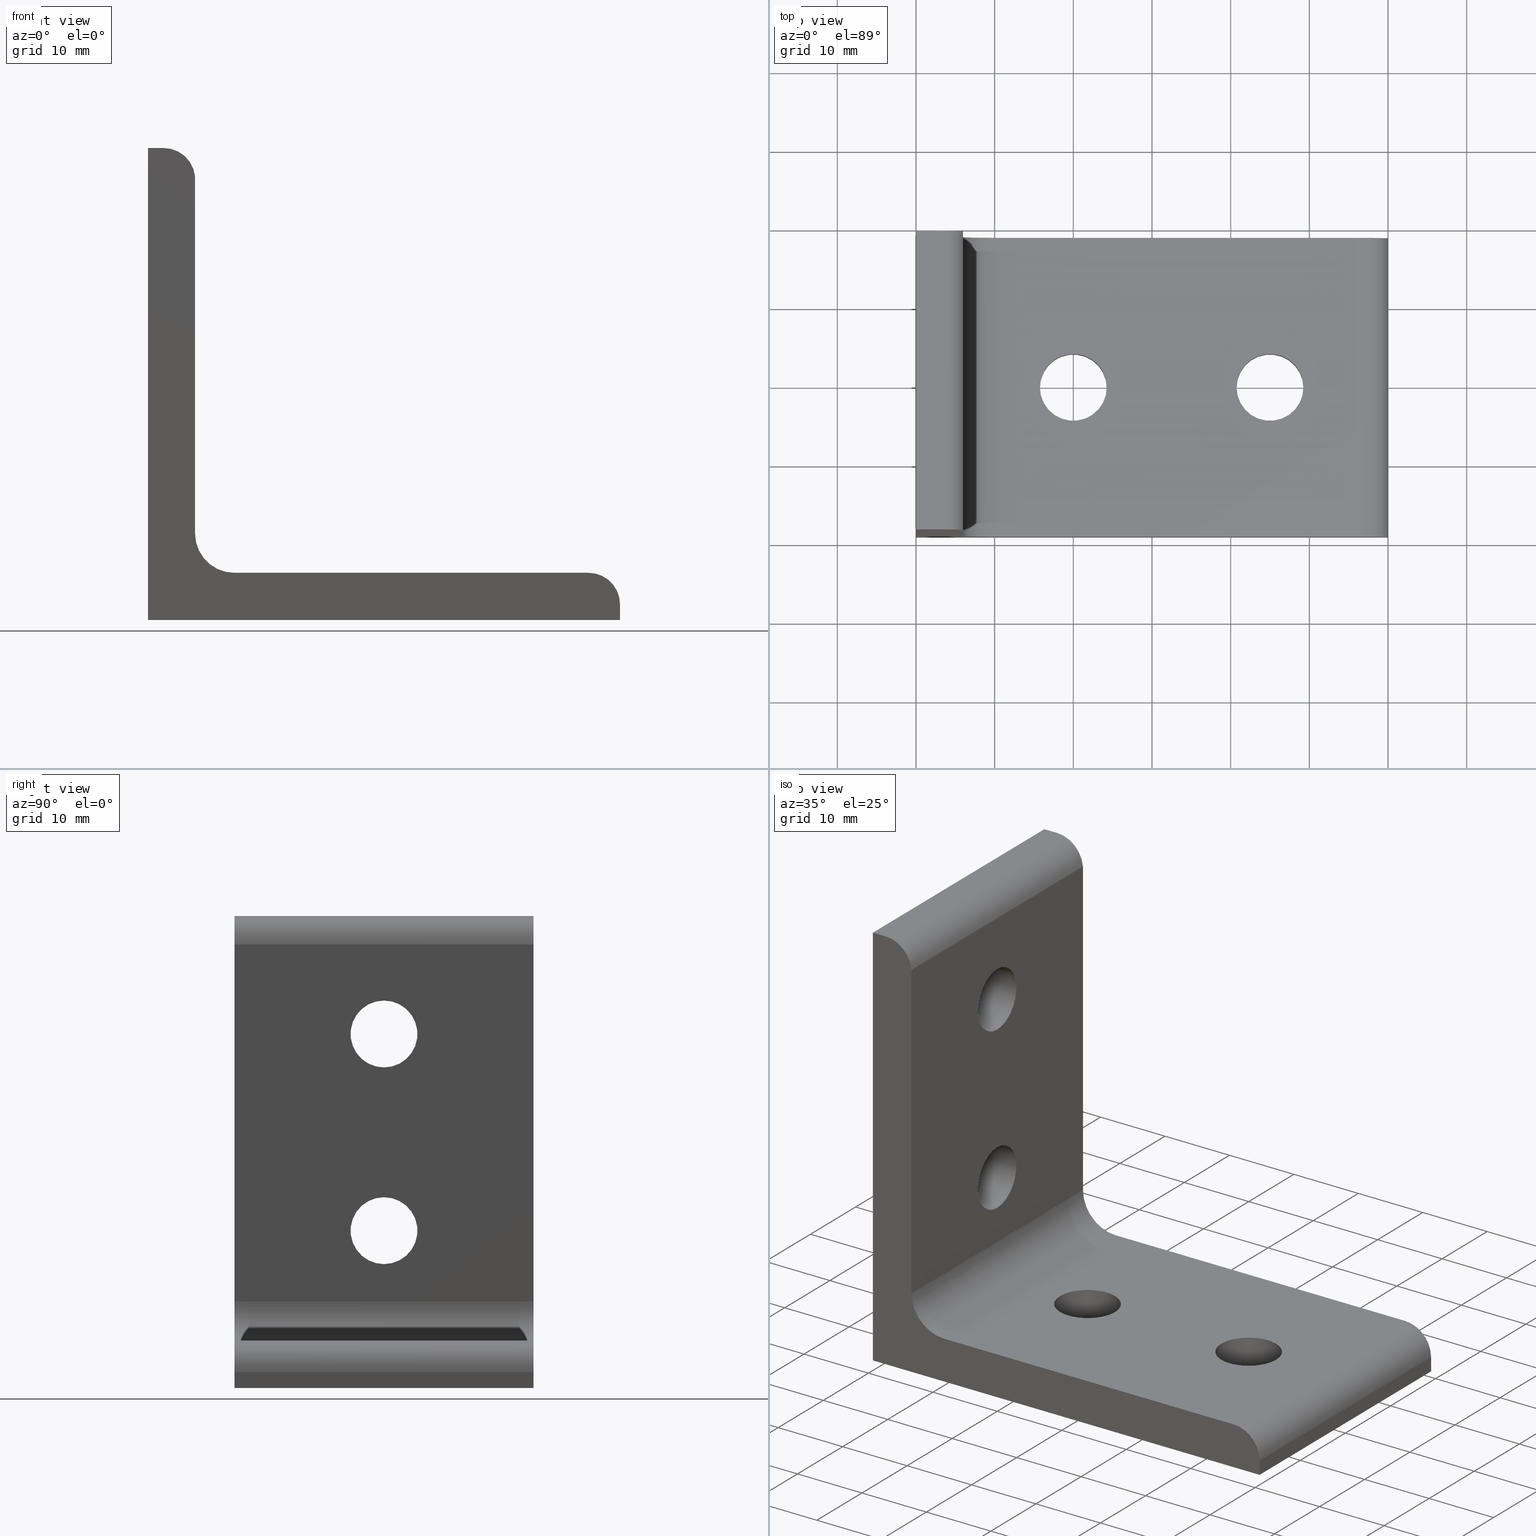
[diagram: canonical four-view strip — front | top / right | iso, engineering-drawing reading convention]
A machine part, canonical four-view strip (front | top / right | iso — engineering-drawing reading convention). The complete STEP part file that produces these views, byte-faithful:
ISO-10303-21;
HEADER;
/* Generated by software containing ST-Developer
 * from STEP Tools, Inc. (www.steptools.com) 
 */

FILE_DESCRIPTION(
/* description */ ('SQUADRETTA 60x60x40'),
/* implementation_level */ '2;1');

FILE_NAME(
/* name */ 
'Q:\\Catalogo\\2_Accessori Dierre\\Per Download Web e catalogo cartace
o\\CATALOGO ELEMENTI ASSEMBLAGGIO\\PAGINA 31\\DSQAL0000034.stp',
/* time_stamp */ '2018-11-02T11:30:44+01:00',
/* author */ ('fzagni'),
/* organization */ (''),
/* preprocessor_version */ 'ST-DEVELOPER v16.1',
/* originating_system */ 'Autodesk Inventor 2016',
/* authorisation */ '');

FILE_SCHEMA (('AUTOMOTIVE_DESIGN { 1 0 10303 214 3 1 1 }'));
ENDSEC;

DATA;
#10=MECHANICAL_DESIGN_GEOMETRIC_PRESENTATION_REPRESENTATION('',(#13),#478);
#11=SHAPE_REPRESENTATION_RELATIONSHIP('SRR','None',#487,#12);
#12=ADVANCED_BREP_SHAPE_REPRESENTATION('',(#14),#477);
#13=STYLED_ITEM('',(#496),#14);
#14=MANIFOLD_SOLID_BREP('None',#286);
#15=FACE_BOUND('',#66,.T.);
#16=FACE_BOUND('',#67,.T.);
#17=FACE_BOUND('',#70,.T.);
#18=FACE_BOUND('',#71,.T.);
#19=FACE_BOUND('',#75,.T.);
#20=FACE_BOUND('',#76,.T.);
#21=FACE_BOUND('',#78,.T.);
#22=FACE_BOUND('',#79,.T.);
#23=FACE_BOUND('',#83,.T.);
#24=FACE_BOUND('',#85,.T.);
#25=FACE_BOUND('',#87,.T.);
#26=FACE_BOUND('',#89,.T.);
#27=CIRCLE('',#290,3.99999753756174);
#28=CIRCLE('',#291,3.99999753756174);
#29=CIRCLE('',#293,4.24999905648292);
#30=CIRCLE('',#294,4.24999905648292);
#31=CIRCLE('',#296,5.00378472891907);
#32=CIRCLE('',#297,5.00378472891907);
#33=CIRCLE('',#299,4.24999905648292);
#34=CIRCLE('',#300,4.24999905648292);
#35=CIRCLE('',#302,4.00000026990974);
#36=CIRCLE('',#303,4.00000026990974);
#37=CIRCLE('',#306,4.24999905648292);
#38=CIRCLE('',#307,4.24999905648292);
#39=CIRCLE('',#309,4.24999905648292);
#40=CIRCLE('',#310,4.24999905648292);
#41=CYLINDRICAL_SURFACE('',#289,3.99999753756174);
#42=CYLINDRICAL_SURFACE('',#295,5.00378472891907);
#43=CYLINDRICAL_SURFACE('',#301,4.00000026990974);
#44=CYLINDRICAL_SURFACE('',#313,4.24999905648292);
#45=CYLINDRICAL_SURFACE('',#314,4.24999905648292);
#46=CYLINDRICAL_SURFACE('',#315,4.24999905648292);
#47=CYLINDRICAL_SURFACE('',#316,4.24999905648292);
#48=FACE_OUTER_BOUND('',#63,.T.);
#49=FACE_OUTER_BOUND('',#64,.T.);
#50=FACE_OUTER_BOUND('',#65,.T.);
#51=FACE_OUTER_BOUND('',#68,.T.);
#52=FACE_OUTER_BOUND('',#69,.T.);
#53=FACE_OUTER_BOUND('',#72,.T.);
#54=FACE_OUTER_BOUND('',#73,.T.);
#55=FACE_OUTER_BOUND('',#74,.T.);
#56=FACE_OUTER_BOUND('',#77,.T.);
#57=FACE_OUTER_BOUND('',#80,.T.);
#58=FACE_OUTER_BOUND('',#81,.T.);
#59=FACE_OUTER_BOUND('',#82,.T.);
#60=FACE_OUTER_BOUND('',#84,.T.);
#61=FACE_OUTER_BOUND('',#86,.T.);
#62=FACE_OUTER_BOUND('',#88,.T.);
#63=EDGE_LOOP('',(#193,#194,#195,#196));
#64=EDGE_LOOP('',(#197,#198,#199,#200));
#65=EDGE_LOOP('',(#201,#202,#203,#204));
#66=EDGE_LOOP('',(#205));
#67=EDGE_LOOP('',(#206));
#68=EDGE_LOOP('',(#207,#208,#209,#210));
#69=EDGE_LOOP('',(#211,#212,#213,#214));
#70=EDGE_LOOP('',(#215));
#71=EDGE_LOOP('',(#216));
#72=EDGE_LOOP('',(#217,#218,#219,#220));
#73=EDGE_LOOP('',(#221,#222,#223,#224));
#74=EDGE_LOOP('',(#225,#226,#227,#228));
#75=EDGE_LOOP('',(#229));
#76=EDGE_LOOP('',(#230));
#77=EDGE_LOOP('',(#231,#232,#233,#234));
#78=EDGE_LOOP('',(#235));
#79=EDGE_LOOP('',(#236));
#80=EDGE_LOOP('',(#237,#238,#239,#240,#241,#242,#243,#244,#245));
#81=EDGE_LOOP('',(#246,#247,#248,#249,#250,#251,#252,#253,#254));
#82=EDGE_LOOP('',(#255));
#83=EDGE_LOOP('',(#256));
#84=EDGE_LOOP('',(#257));
#85=EDGE_LOOP('',(#258));
#86=EDGE_LOOP('',(#259));
#87=EDGE_LOOP('',(#260));
#88=EDGE_LOOP('',(#261));
#89=EDGE_LOOP('',(#262));
#90=LINE('',#402,#111);
#91=LINE('',#404,#112);
#92=LINE('',#406,#113);
#93=LINE('',#407,#114);
#94=LINE('',#412,#115);
#95=LINE('',#416,#116);
#96=LINE('',#418,#117);
#97=LINE('',#419,#118);
#98=LINE('',#428,#119);
#99=LINE('',#432,#120);
#100=LINE('',#434,#121);
#101=LINE('',#435,#122);
#102=LINE('',#444,#123);
#103=LINE('',#448,#124);
#104=LINE('',#450,#125);
#105=LINE('',#451,#126);
#106=LINE('',#454,#127);
#107=LINE('',#456,#128);
#108=LINE('',#457,#129);
#109=LINE('',#463,#130);
#110=LINE('',#464,#131);
#111=VECTOR('',#321,1.99998341995524);
#112=VECTOR('',#322,38.);
#113=VECTOR('',#323,1.99998341995524);
#114=VECTOR('',#324,38.);
#115=VECTOR('',#329,38.);
#116=VECTOR('',#334,45.0133032110452);
#117=VECTOR('',#335,38.);
#118=VECTOR('',#336,45.0133032110452);
#119=VECTOR('',#345,38.);
#120=VECTOR('',#350,45.3656752245638);
#121=VECTOR('',#351,38.);
#122=VECTOR('',#352,45.3656752245638);
#123=VECTOR('',#361,38.);
#124=VECTOR('',#366,1.99999955599196);
#125=VECTOR('',#367,38.);
#126=VECTOR('',#368,1.99999955599196);
#127=VECTOR('',#371,59.9999866697599);
#128=VECTOR('',#372,38.);
#129=VECTOR('',#373,59.9999866697599);
#130=VECTOR('',#380,59.9999866797652);
#131=VECTOR('',#381,59.9999866797652);
#132=VERTEX_POINT('',#400);
#133=VERTEX_POINT('',#401);
#134=VERTEX_POINT('',#403);
#135=VERTEX_POINT('',#405);
#136=VERTEX_POINT('',#409);
#137=VERTEX_POINT('',#411);
#138=VERTEX_POINT('',#415);
#139=VERTEX_POINT('',#417);
#140=VERTEX_POINT('',#420);
#141=VERTEX_POINT('',#422);
#142=VERTEX_POINT('',#425);
#143=VERTEX_POINT('',#427);
#144=VERTEX_POINT('',#431);
#145=VERTEX_POINT('',#433);
#146=VERTEX_POINT('',#436);
#147=VERTEX_POINT('',#438);
#148=VERTEX_POINT('',#441);
#149=VERTEX_POINT('',#443);
#150=VERTEX_POINT('',#447);
#151=VERTEX_POINT('',#449);
#152=VERTEX_POINT('',#453);
#153=VERTEX_POINT('',#455);
#154=VERTEX_POINT('',#458);
#155=VERTEX_POINT('',#460);
#156=VERTEX_POINT('',#465);
#157=VERTEX_POINT('',#467);
#158=EDGE_CURVE('',#132,#133,#90,.T.);
#159=EDGE_CURVE('',#133,#134,#91,.T.);
#160=EDGE_CURVE('',#135,#134,#92,.T.);
#161=EDGE_CURVE('',#132,#135,#93,.T.);
#162=EDGE_CURVE('',#133,#136,#27,.T.);
#163=EDGE_CURVE('',#136,#137,#94,.T.);
#164=EDGE_CURVE('',#134,#137,#28,.T.);
#165=EDGE_CURVE('',#136,#138,#95,.T.);
#166=EDGE_CURVE('',#138,#139,#96,.T.);
#167=EDGE_CURVE('',#137,#139,#97,.T.);
#168=EDGE_CURVE('',#140,#140,#29,.T.);
#169=EDGE_CURVE('',#141,#141,#30,.T.);
#170=EDGE_CURVE('',#138,#142,#31,.T.);
#171=EDGE_CURVE('',#142,#143,#98,.T.);
#172=EDGE_CURVE('',#139,#143,#32,.T.);
#173=EDGE_CURVE('',#142,#144,#99,.T.);
#174=EDGE_CURVE('',#144,#145,#100,.T.);
#175=EDGE_CURVE('',#143,#145,#101,.T.);
#176=EDGE_CURVE('',#146,#146,#33,.T.);
#177=EDGE_CURVE('',#147,#147,#34,.T.);
#178=EDGE_CURVE('',#144,#148,#35,.T.);
#179=EDGE_CURVE('',#148,#149,#102,.T.);
#180=EDGE_CURVE('',#145,#149,#36,.T.);
#181=EDGE_CURVE('',#148,#150,#103,.T.);
#182=EDGE_CURVE('',#150,#151,#104,.T.);
#183=EDGE_CURVE('',#149,#151,#105,.T.);
#184=EDGE_CURVE('',#150,#152,#106,.T.);
#185=EDGE_CURVE('',#152,#153,#107,.T.);
#186=EDGE_CURVE('',#151,#153,#108,.T.);
#187=EDGE_CURVE('',#154,#154,#37,.T.);
#188=EDGE_CURVE('',#155,#155,#38,.T.);
#189=EDGE_CURVE('',#153,#135,#109,.T.);
#190=EDGE_CURVE('',#152,#132,#110,.T.);
#191=EDGE_CURVE('',#156,#156,#39,.T.);
#192=EDGE_CURVE('',#157,#157,#40,.T.);
#193=ORIENTED_EDGE('',*,*,#158,.T.);
#194=ORIENTED_EDGE('',*,*,#159,.T.);
#195=ORIENTED_EDGE('',*,*,#160,.F.);
#196=ORIENTED_EDGE('',*,*,#161,.F.);
#197=ORIENTED_EDGE('',*,*,#162,.T.);
#198=ORIENTED_EDGE('',*,*,#163,.T.);
#199=ORIENTED_EDGE('',*,*,#164,.F.);
#200=ORIENTED_EDGE('',*,*,#159,.F.);
#201=ORIENTED_EDGE('',*,*,#165,.T.);
#202=ORIENTED_EDGE('',*,*,#166,.T.);
#203=ORIENTED_EDGE('',*,*,#167,.F.);
#204=ORIENTED_EDGE('',*,*,#163,.F.);
#205=ORIENTED_EDGE('',*,*,#168,.F.);
#206=ORIENTED_EDGE('',*,*,#169,.F.);
#207=ORIENTED_EDGE('',*,*,#170,.T.);
#208=ORIENTED_EDGE('',*,*,#171,.T.);
#209=ORIENTED_EDGE('',*,*,#172,.F.);
#210=ORIENTED_EDGE('',*,*,#166,.F.);
#211=ORIENTED_EDGE('',*,*,#173,.T.);
#212=ORIENTED_EDGE('',*,*,#174,.T.);
#213=ORIENTED_EDGE('',*,*,#175,.F.);
#214=ORIENTED_EDGE('',*,*,#171,.F.);
#215=ORIENTED_EDGE('',*,*,#176,.T.);
#216=ORIENTED_EDGE('',*,*,#177,.T.);
#217=ORIENTED_EDGE('',*,*,#178,.T.);
#218=ORIENTED_EDGE('',*,*,#179,.T.);
#219=ORIENTED_EDGE('',*,*,#180,.F.);
#220=ORIENTED_EDGE('',*,*,#174,.F.);
#221=ORIENTED_EDGE('',*,*,#181,.T.);
#222=ORIENTED_EDGE('',*,*,#182,.T.);
#223=ORIENTED_EDGE('',*,*,#183,.F.);
#224=ORIENTED_EDGE('',*,*,#179,.F.);
#225=ORIENTED_EDGE('',*,*,#184,.T.);
#226=ORIENTED_EDGE('',*,*,#185,.T.);
#227=ORIENTED_EDGE('',*,*,#186,.F.);
#228=ORIENTED_EDGE('',*,*,#182,.F.);
#229=ORIENTED_EDGE('',*,*,#187,.F.);
#230=ORIENTED_EDGE('',*,*,#188,.F.);
#231=ORIENTED_EDGE('',*,*,#161,.T.);
#232=ORIENTED_EDGE('',*,*,#189,.F.);
#233=ORIENTED_EDGE('',*,*,#185,.F.);
#234=ORIENTED_EDGE('',*,*,#190,.T.);
#235=ORIENTED_EDGE('',*,*,#191,.T.);
#236=ORIENTED_EDGE('',*,*,#192,.T.);
#237=ORIENTED_EDGE('',*,*,#190,.F.);
#238=ORIENTED_EDGE('',*,*,#184,.F.);
#239=ORIENTED_EDGE('',*,*,#181,.F.);
#240=ORIENTED_EDGE('',*,*,#178,.F.);
#241=ORIENTED_EDGE('',*,*,#173,.F.);
#242=ORIENTED_EDGE('',*,*,#170,.F.);
#243=ORIENTED_EDGE('',*,*,#165,.F.);
#244=ORIENTED_EDGE('',*,*,#162,.F.);
#245=ORIENTED_EDGE('',*,*,#158,.F.);
#246=ORIENTED_EDGE('',*,*,#160,.T.);
#247=ORIENTED_EDGE('',*,*,#164,.T.);
#248=ORIENTED_EDGE('',*,*,#167,.T.);
#249=ORIENTED_EDGE('',*,*,#172,.T.);
#250=ORIENTED_EDGE('',*,*,#175,.T.);
#251=ORIENTED_EDGE('',*,*,#180,.T.);
#252=ORIENTED_EDGE('',*,*,#183,.T.);
#253=ORIENTED_EDGE('',*,*,#186,.T.);
#254=ORIENTED_EDGE('',*,*,#189,.T.);
#255=ORIENTED_EDGE('',*,*,#191,.F.);
#256=ORIENTED_EDGE('',*,*,#168,.T.);
#257=ORIENTED_EDGE('',*,*,#192,.F.);
#258=ORIENTED_EDGE('',*,*,#169,.T.);
#259=ORIENTED_EDGE('',*,*,#176,.F.);
#260=ORIENTED_EDGE('',*,*,#187,.T.);
#261=ORIENTED_EDGE('',*,*,#177,.F.);
#262=ORIENTED_EDGE('',*,*,#188,.T.);
#263=PLANE('',#288);
#264=PLANE('',#292);
#265=PLANE('',#298);
#266=PLANE('',#304);
#267=PLANE('',#305);
#268=PLANE('',#308);
#269=PLANE('',#311);
#270=PLANE('',#312);
#271=ADVANCED_FACE('',(#48),#263,.T.);
#272=ADVANCED_FACE('',(#49),#41,.T.);
#273=ADVANCED_FACE('',(#50,#15,#16),#264,.T.);
#274=ADVANCED_FACE('',(#51),#42,.F.);
#275=ADVANCED_FACE('',(#52,#17,#18),#265,.T.);
#276=ADVANCED_FACE('',(#53),#43,.T.);
#277=ADVANCED_FACE('',(#54),#266,.T.);
#278=ADVANCED_FACE('',(#55,#19,#20),#267,.T.);
#279=ADVANCED_FACE('',(#56,#21,#22),#268,.T.);
#280=ADVANCED_FACE('',(#57),#269,.F.);
#281=ADVANCED_FACE('',(#58),#270,.T.);
#282=ADVANCED_FACE('',(#59,#23),#44,.F.);
#283=ADVANCED_FACE('',(#60,#24),#45,.F.);
#284=ADVANCED_FACE('',(#61,#25),#46,.F.);
#285=ADVANCED_FACE('',(#62,#26),#47,.F.);
#286=CLOSED_SHELL('',(#271,#272,#273,#274,#275,#276,#277,#278,#279,#280,
#281,#282,#283,#284,#285));
#287=AXIS2_PLACEMENT_3D('placement',#398,#317,#318);
#288=AXIS2_PLACEMENT_3D('',#399,#319,#320);
#289=AXIS2_PLACEMENT_3D('',#408,#325,#326);
#290=AXIS2_PLACEMENT_3D('',#410,#327,#328);
#291=AXIS2_PLACEMENT_3D('',#413,#330,#331);
#292=AXIS2_PLACEMENT_3D('',#414,#332,#333);
#293=AXIS2_PLACEMENT_3D('',#421,#337,#338);
#294=AXIS2_PLACEMENT_3D('',#423,#339,#340);
#295=AXIS2_PLACEMENT_3D('',#424,#341,#342);
#296=AXIS2_PLACEMENT_3D('',#426,#343,#344);
#297=AXIS2_PLACEMENT_3D('',#429,#346,#347);
#298=AXIS2_PLACEMENT_3D('',#430,#348,#349);
#299=AXIS2_PLACEMENT_3D('',#437,#353,#354);
#300=AXIS2_PLACEMENT_3D('',#439,#355,#356);
#301=AXIS2_PLACEMENT_3D('',#440,#357,#358);
#302=AXIS2_PLACEMENT_3D('',#442,#359,#360);
#303=AXIS2_PLACEMENT_3D('',#445,#362,#363);
#304=AXIS2_PLACEMENT_3D('',#446,#364,#365);
#305=AXIS2_PLACEMENT_3D('',#452,#369,#370);
#306=AXIS2_PLACEMENT_3D('',#459,#374,#375);
#307=AXIS2_PLACEMENT_3D('',#461,#376,#377);
#308=AXIS2_PLACEMENT_3D('',#462,#378,#379);
#309=AXIS2_PLACEMENT_3D('',#466,#382,#383);
#310=AXIS2_PLACEMENT_3D('',#468,#384,#385);
#311=AXIS2_PLACEMENT_3D('',#469,#386,#387);
#312=AXIS2_PLACEMENT_3D('',#470,#388,#389);
#313=AXIS2_PLACEMENT_3D('',#471,#390,#391);
#314=AXIS2_PLACEMENT_3D('',#472,#392,#393);
#315=AXIS2_PLACEMENT_3D('',#473,#394,#395);
#316=AXIS2_PLACEMENT_3D('',#474,#396,#397);
#317=DIRECTION('axis',(0.,0.,1.));
#318=DIRECTION('refdir',(1.,0.,0.));
#319=DIRECTION('center_axis',(1.,0.,0.));
#320=DIRECTION('ref_axis',(0.,0.,-1.));
#321=DIRECTION('',(0.,0.,1.));
#322=DIRECTION('',(0.,-1.,0.));
#323=DIRECTION('',(0.,0.,1.));
#324=DIRECTION('',(0.,-1.,0.));
#325=DIRECTION('center_axis',(0.,-1.,0.));
#326=DIRECTION('ref_axis',(1.,0.,-7.16221E-12));
#327=DIRECTION('center_axis',(0.,-1.,0.));
#328=DIRECTION('ref_axis',(0.,0.,1.));
#329=DIRECTION('',(0.,-1.,0.));
#330=DIRECTION('center_axis',(0.,-1.,0.));
#331=DIRECTION('ref_axis',(0.,0.,1.));
#332=DIRECTION('center_axis',(0.,0.,1.));
#333=DIRECTION('ref_axis',(1.,0.,0.));
#334=DIRECTION('',(-1.,0.,0.));
#335=DIRECTION('',(0.,-1.,0.));
#336=DIRECTION('',(-1.,0.,0.));
#337=DIRECTION('center_axis',(0.,0.,1.));
#338=DIRECTION('ref_axis',(-1.,0.,0.));
#339=DIRECTION('center_axis',(0.,0.,1.));
#340=DIRECTION('ref_axis',(-1.,0.,0.));
#341=DIRECTION('center_axis',(0.,1.,0.));
#342=DIRECTION('ref_axis',(0.,0.,-1.));
#343=DIRECTION('center_axis',(0.,1.,0.));
#344=DIRECTION('ref_axis',(-1.,0.,0.));
#345=DIRECTION('',(0.,-1.,0.));
#346=DIRECTION('center_axis',(0.,1.,0.));
#347=DIRECTION('ref_axis',(-1.,0.,0.));
#348=DIRECTION('center_axis',(1.,0.,0.));
#349=DIRECTION('ref_axis',(0.,0.,-1.));
#350=DIRECTION('',(0.,0.,1.));
#351=DIRECTION('',(0.,-1.,0.));
#352=DIRECTION('',(0.,0.,1.));
#353=DIRECTION('center_axis',(-1.,0.,0.));
#354=DIRECTION('ref_axis',(0.,0.,-1.));
#355=DIRECTION('center_axis',(-1.,0.,0.));
#356=DIRECTION('ref_axis',(0.,0.,-1.));
#357=DIRECTION('center_axis',(0.,-1.,0.));
#358=DIRECTION('ref_axis',(1.,0.,0.));
#359=DIRECTION('center_axis',(0.,-1.,0.));
#360=DIRECTION('ref_axis',(1.,0.,0.));
#361=DIRECTION('',(0.,-1.,0.));
#362=DIRECTION('center_axis',(0.,-1.,0.));
#363=DIRECTION('ref_axis',(1.,0.,0.));
#364=DIRECTION('center_axis',(0.,0.,1.));
#365=DIRECTION('ref_axis',(1.,0.,0.));
#366=DIRECTION('',(-1.,0.,0.));
#367=DIRECTION('',(0.,-1.,0.));
#368=DIRECTION('',(-1.,0.,0.));
#369=DIRECTION('center_axis',(-1.,0.,0.));
#370=DIRECTION('ref_axis',(0.,0.,1.));
#371=DIRECTION('',(0.,0.,-1.));
#372=DIRECTION('',(0.,-1.,0.));
#373=DIRECTION('',(0.,0.,-1.));
#374=DIRECTION('center_axis',(-1.,0.,0.));
#375=DIRECTION('ref_axis',(0.,0.,-1.));
#376=DIRECTION('center_axis',(-1.,0.,0.));
#377=DIRECTION('ref_axis',(0.,0.,-1.));
#378=DIRECTION('center_axis',(0.,0.,-1.));
#379=DIRECTION('ref_axis',(-1.,0.,0.));
#380=DIRECTION('',(1.,0.,0.));
#381=DIRECTION('',(1.,0.,0.));
#382=DIRECTION('center_axis',(0.,0.,1.));
#383=DIRECTION('ref_axis',(-1.,0.,0.));
#384=DIRECTION('center_axis',(0.,0.,1.));
#385=DIRECTION('ref_axis',(-1.,0.,0.));
#386=DIRECTION('center_axis',(0.,-1.,0.));
#387=DIRECTION('ref_axis',(0.,0.,-1.));
#388=DIRECTION('center_axis',(0.,-1.,0.));
#389=DIRECTION('ref_axis',(0.,0.,-1.));
#390=DIRECTION('center_axis',(0.,0.,1.));
#391=DIRECTION('ref_axis',(-1.,0.,0.));
#392=DIRECTION('center_axis',(0.,0.,1.));
#393=DIRECTION('ref_axis',(-1.,0.,0.));
#394=DIRECTION('center_axis',(-1.,0.,0.));
#395=DIRECTION('ref_axis',(0.,0.,-1.));
#396=DIRECTION('center_axis',(-1.,0.,0.));
#397=DIRECTION('ref_axis',(0.,0.,-1.));
#398=CARTESIAN_POINT('',(0.,0.,0.));
#399=CARTESIAN_POINT('Origin',(59.9999866797652,19.,-1.163414E-15));
#400=CARTESIAN_POINT('',(59.9999866797652,19.,-1.163414E-15));
#401=CARTESIAN_POINT('',(59.9999866797361,19.,1.99998341995524));
#402=CARTESIAN_POINT('',(59.9999866797652,19.,-1.163414E-15));
#403=CARTESIAN_POINT('',(59.9999866797361,-19.,1.99998341995524));
#404=CARTESIAN_POINT('',(59.9999866797361,19.,1.99998341995524));
#405=CARTESIAN_POINT('',(59.9999866797652,-19.,-1.163414E-15));
#406=CARTESIAN_POINT('',(59.9999866797652,-19.,-1.163414E-15));
#407=CARTESIAN_POINT('',(59.9999866797652,19.,-1.163414E-15));
#408=CARTESIAN_POINT('Origin',(55.9999891421744,19.,1.99998341998389));
#409=CARTESIAN_POINT('',(55.9999891421744,19.,5.99998095754563));
#410=CARTESIAN_POINT('Origin',(55.9999891421744,19.,1.99998341998389));
#411=CARTESIAN_POINT('',(55.9999891421744,-19.,5.99998095754563));
#412=CARTESIAN_POINT('',(55.9999891421744,19.,5.99998095754563));
#413=CARTESIAN_POINT('Origin',(55.9999891421744,-19.,1.99998341998389));
#414=CARTESIAN_POINT('Origin',(55.9999891421744,19.,5.99998095754563));
#415=CARTESIAN_POINT('',(10.9866859311292,19.,5.99998095754563));
#416=CARTESIAN_POINT('',(55.9999891421744,19.,5.99998095754563));
#417=CARTESIAN_POINT('',(10.9866859311292,-19.,5.99998095754563));
#418=CARTESIAN_POINT('',(10.9866859311292,19.,5.99998095754563));
#419=CARTESIAN_POINT('',(55.9999891421744,-19.,5.99998095754563));
#420=CARTESIAN_POINT('',(24.2499946164085,-4.218075901E-6,5.99998095754595));
#421=CARTESIAN_POINT('Origin',(19.9999955599255,-4.218075901E-6,5.999980957546));
#422=CARTESIAN_POINT('',(49.2499890663084,-4.218075901E-6,5.9999809575457));
#423=CARTESIAN_POINT('Origin',(44.9999900098255,-4.218075901E-6,5.99998095754574));
#424=CARTESIAN_POINT('Origin',(10.9866859311292,19.,11.0037656864647));
#425=CARTESIAN_POINT('',(5.98290120221009,19.,11.0037656864647));
#426=CARTESIAN_POINT('Origin',(10.9866859311292,19.,11.0037656864647));
#427=CARTESIAN_POINT('',(5.98290120221009,-19.,11.0037656864647));
#428=CARTESIAN_POINT('',(5.98290120221009,19.,11.0037656864647));
#429=CARTESIAN_POINT('Origin',(10.9866859311292,-19.,11.0037656864647));
#430=CARTESIAN_POINT('Origin',(5.98290120221009,19.,11.0037656864647));
#431=CARTESIAN_POINT('',(5.98290120221009,19.,56.3694409110285));
#432=CARTESIAN_POINT('',(5.98290120221009,19.,11.0037656864647));
#433=CARTESIAN_POINT('',(5.98290120221009,-19.,56.3694409110285));
#434=CARTESIAN_POINT('',(5.98290120221009,19.,56.3694409110285));
#435=CARTESIAN_POINT('',(5.98290120221009,-19.,11.0037656864647));
#436=CARTESIAN_POINT('',(5.98290120221009,-4.218076355E-6,49.249989061303));
#437=CARTESIAN_POINT('Origin',(5.98290120221009,-4.218076356E-6,44.9999900048201));
#438=CARTESIAN_POINT('',(5.98290120221009,-4.218076355E-6,24.2499946164029));
#439=CARTESIAN_POINT('Origin',(5.98290120221009,-4.218076356E-6,19.99999555992));
#440=CARTESIAN_POINT('Origin',(1.99999955599196,19.,55.99998639985));
#441=CARTESIAN_POINT('',(1.99999955599196,19.,59.9999866697599));
#442=CARTESIAN_POINT('Origin',(1.99999955599196,19.,55.99998639985));
#443=CARTESIAN_POINT('',(1.99999955599196,-19.,59.9999866697599));
#444=CARTESIAN_POINT('',(1.99999955599196,19.,59.9999866697599));
#445=CARTESIAN_POINT('Origin',(1.99999955599196,-19.,55.99998639985));
#446=CARTESIAN_POINT('Origin',(1.99999955599196,19.,59.9999866697599));
#447=CARTESIAN_POINT('',(0.,19.,59.9999866697599));
#448=CARTESIAN_POINT('',(1.99999955599196,19.,59.9999866697599));
#449=CARTESIAN_POINT('',(0.,-19.,59.9999866697599));
#450=CARTESIAN_POINT('',(0.,19.,59.9999866697599));
#451=CARTESIAN_POINT('',(1.99999955599196,-19.,59.9999866697599));
#452=CARTESIAN_POINT('Origin',(0.,19.,59.9999866697599));
#453=CARTESIAN_POINT('',(0.,19.,-1.163414E-15));
#454=CARTESIAN_POINT('',(0.,19.,59.9999866697599));
#455=CARTESIAN_POINT('',(0.,-19.,-1.163414E-15));
#456=CARTESIAN_POINT('',(0.,19.,-1.163414E-15));
#457=CARTESIAN_POINT('',(0.,-19.,59.9999866697599));
#458=CARTESIAN_POINT('',(0.,-4.218076355E-6,49.249989061303));
#459=CARTESIAN_POINT('Origin',(0.,-4.218076356E-6,44.9999900048201));
#460=CARTESIAN_POINT('',(0.,-4.218076355E-6,24.2499946164029));
#461=CARTESIAN_POINT('Origin',(0.,-4.218076356E-6,19.99999555992));
#462=CARTESIAN_POINT('Origin',(0.,19.,-1.163414E-15));
#463=CARTESIAN_POINT('',(0.,-19.,-1.163414E-15));
#464=CARTESIAN_POINT('',(0.,19.,-1.163414E-15));
#465=CARTESIAN_POINT('',(24.2499946164085,-4.218075901E-6,-4.321089E-14));
#466=CARTESIAN_POINT('Origin',(19.9999955599255,-4.218075901E-6,-2.75236E-16));
#467=CARTESIAN_POINT('',(49.2499890663084,-4.218075901E-6,-4.321089E-14));
#468=CARTESIAN_POINT('Origin',(44.9999900098255,-4.218075901E-6,-2.75236E-16));
#469=CARTESIAN_POINT('Origin',(-6.00000340310681,19.,-6.00000340197266));
#470=CARTESIAN_POINT('Origin',(-6.00000340310681,-19.,-6.00000340197266));
#471=CARTESIAN_POINT('Origin',(19.9999955599255,-4.218075901E-6,5.999980957546));
#472=CARTESIAN_POINT('Origin',(44.9999900098255,-4.218075901E-6,5.99998095754574));
#473=CARTESIAN_POINT('Origin',(0.,-4.218076356E-6,44.9999900048201));
#474=CARTESIAN_POINT('Origin',(0.,-4.218076356E-6,19.99999555992));
#475=UNCERTAINTY_MEASURE_WITH_UNIT(LENGTH_MEASURE(0.01),#479,
'DISTANCE_ACCURACY_VALUE',
'Maximum model space distance between geometric entities at asserted c
onnectivities');
#476=UNCERTAINTY_MEASURE_WITH_UNIT(LENGTH_MEASURE(1.E-6),#479,
'DISTANCE_ACCURACY_VALUE',
'Maximum model space distance between geometric entities at asserted c
onnectivities');
#477=(
GEOMETRIC_REPRESENTATION_CONTEXT(3)
GLOBAL_UNCERTAINTY_ASSIGNED_CONTEXT((#475))
GLOBAL_UNIT_ASSIGNED_CONTEXT((#479,#482,#480))
REPRESENTATION_CONTEXT('','3D')
);
#478=(
GEOMETRIC_REPRESENTATION_CONTEXT(3)
GLOBAL_UNCERTAINTY_ASSIGNED_CONTEXT((#476))
GLOBAL_UNIT_ASSIGNED_CONTEXT((#479,#482,#480))
REPRESENTATION_CONTEXT('','3D')
);
#479=(
LENGTH_UNIT()
NAMED_UNIT(*)
SI_UNIT(.MILLI.,.METRE.)
);
#480=(
NAMED_UNIT(*)
SI_UNIT($,.STERADIAN.)
SOLID_ANGLE_UNIT()
);
#481=DIMENSIONAL_EXPONENTS(0.,0.,0.,0.,0.,0.,0.);
#482=(
CONVERSION_BASED_UNIT('degree',#484)
NAMED_UNIT(#481)
PLANE_ANGLE_UNIT()
);
#483=(
NAMED_UNIT(*)
PLANE_ANGLE_UNIT()
SI_UNIT($,.RADIAN.)
);
#484=PLANE_ANGLE_MEASURE_WITH_UNIT(PLANE_ANGLE_MEASURE(0.01745329252),#483);
#485=SHAPE_DEFINITION_REPRESENTATION(#486,#487);
#486=PRODUCT_DEFINITION_SHAPE('',$,#489);
#487=SHAPE_REPRESENTATION('',(#287),#477);
#488=PRODUCT_DEFINITION_CONTEXT('part definition',#493,'design');
#489=PRODUCT_DEFINITION('30.001.00A','30.001.00A',#490,#488);
#490=PRODUCT_DEFINITION_FORMATION('','A',#495);
#491=PRODUCT_RELATED_PRODUCT_CATEGORY('30.001.00A','30.001.00A',(#495));
#492=APPLICATION_PROTOCOL_DEFINITION('international standard',
'automotive_design',2009,#493);
#493=APPLICATION_CONTEXT(
'Core Data for Automotive Mechanical Design Process');
#494=PRODUCT_CONTEXT('part definition',#493,'mechanical');
#495=PRODUCT('30.001.00A','30.001.00A',$,(#494));
#496=PRESENTATION_STYLE_ASSIGNMENT((#497));
#497=SURFACE_STYLE_USAGE(.BOTH.,#498);
#498=SURFACE_SIDE_STYLE('',(#499));
#499=SURFACE_STYLE_FILL_AREA(#500);
#500=FILL_AREA_STYLE('',(#501));
#501=FILL_AREA_STYLE_COLOUR('',#502);
#502=COLOUR_RGB('',0.956862745098039,0.956862745098039,0.956862745098039);
ENDSEC;
END-ISO-10303-21;
